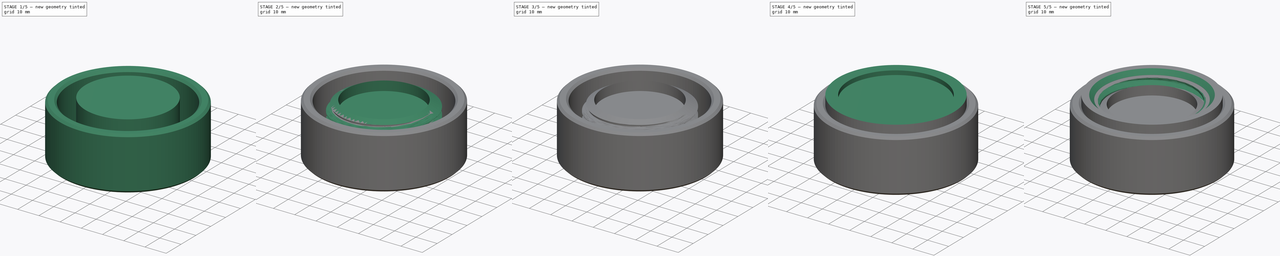
[diagram: build sequence overview — one tinted view per stage of 5, left to right]
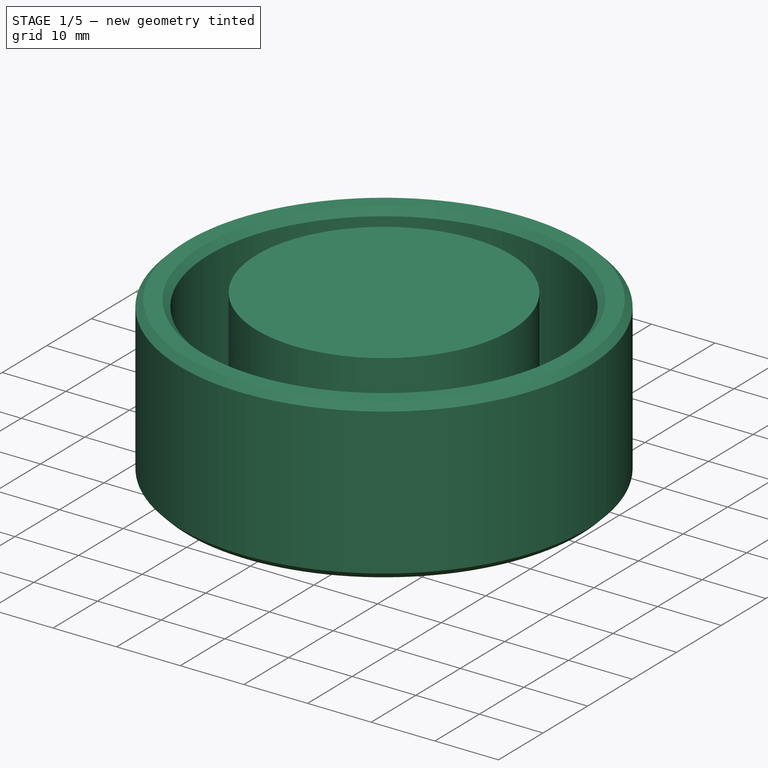
[diagram: stage 1 of 5 — iso view after this stage's code; geometry added in this stage tinted green]
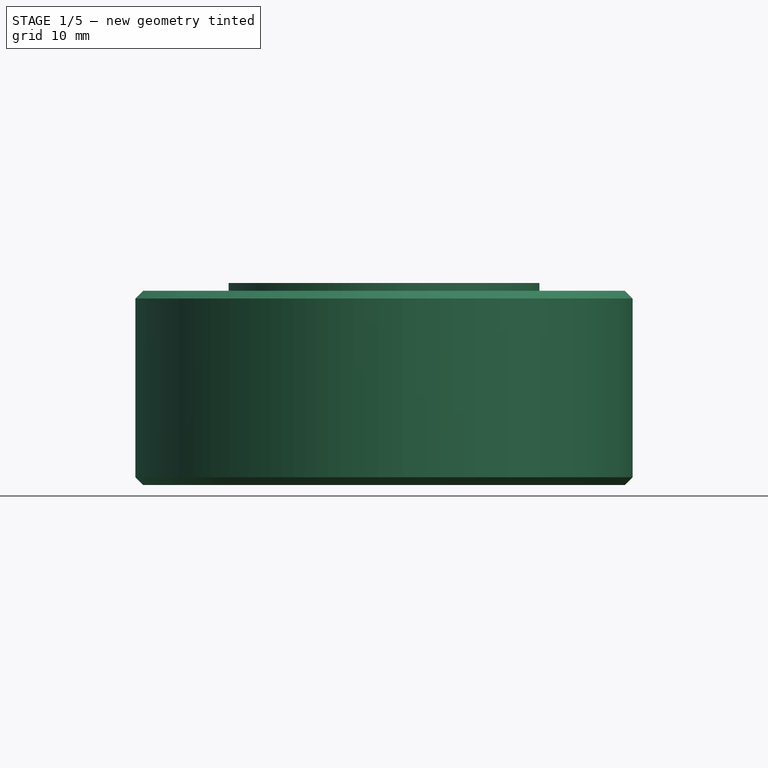
[diagram: stage 1 of 5 — front view after this stage's code; geometry added in this stage tinted green]
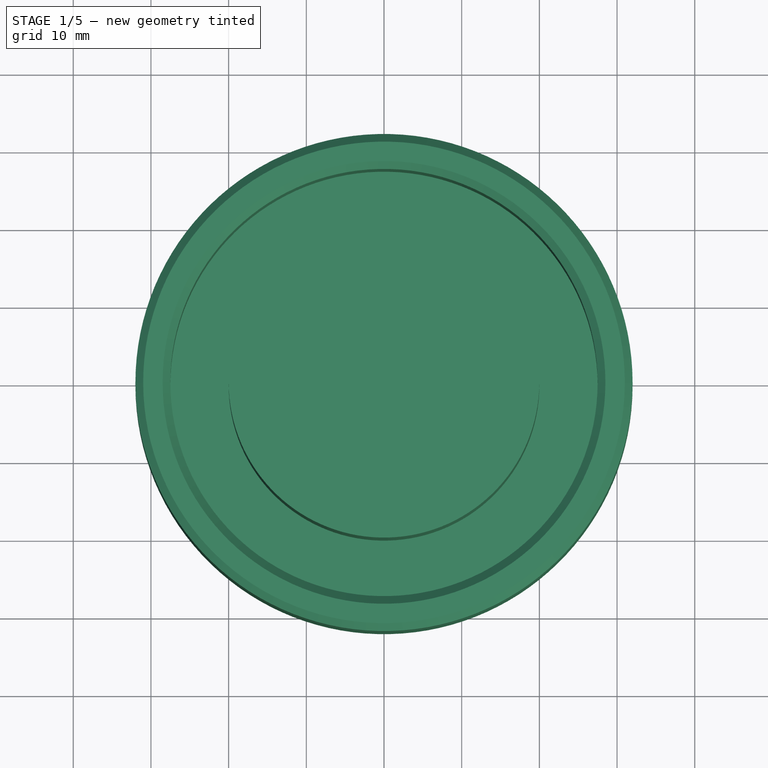
[diagram: stage 1 of 5 — top view after this stage's code; geometry added in this stage tinted green]
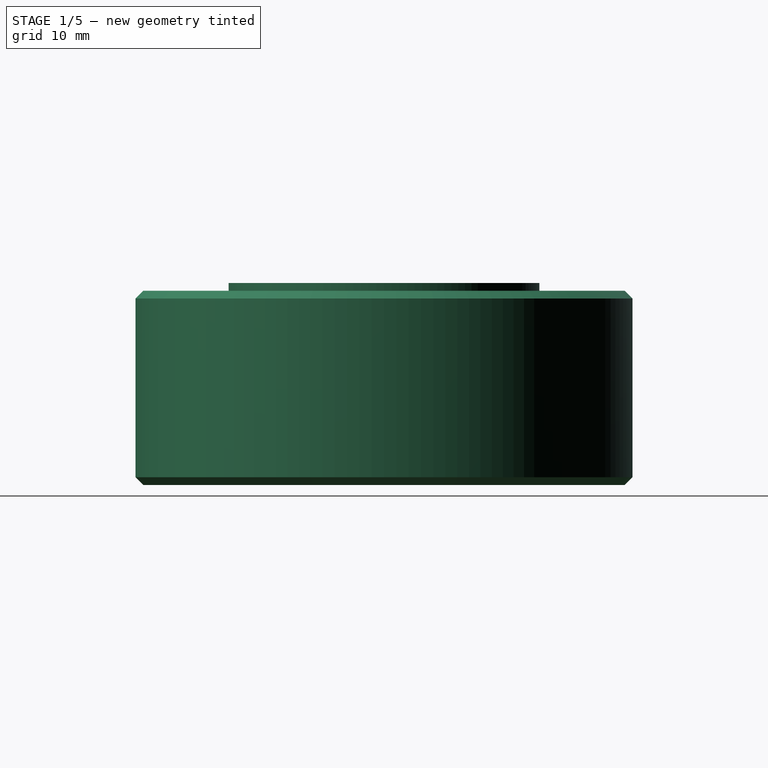
[diagram: stage 1 of 5 — right view after this stage's code; geometry added in this stage tinted green]
FCSTD DOCUMENT  (FreeCAD 1.1R20260325 (Git shallow))
Label: DrXAwesomeKnob
License: All rights reserved
LicenseURL: https://en.wikipedia.org/wiki/All_rights_reserved
objects: Sketcher::SketchObject×11, App::Point×8, PartDesign::Pad×6, PartDesign::Body×4, App::Part×4, PartDesign::Pocket×4, PartDesign::Chamfer×3, Part::Part2DObjectPython×2, Part::Helix×2, PartDesign::Fillet×2, PartDesign::SubtractivePipe×1, PartDesign::AdditivePipe×1, PartDesign::Groove×1
note: 84 computed .brp shape members not serialized (recipe doc carries the construction recipe); baked Part::Feature solids carry a one-line shape summary decoded from their .brp

FEATURE [PartDesign::Body] Body  label="XKnobTopBody"
  AllowCompound = true
  Group = -> [Sketch002,Pad001,Sketch003,Pocket,Sketch004,Pad002,Sketch005,Pocket001,VThreadProfile,Helix,SubtractivePipe,Chamfer,Fillet]
  Origin = -> Origin002
  Tip = -> Fillet
FEATURE [App::Part] Part  label="XKnobTopPart"
  Group = -> [Body]
  Origin = -> Origin
FEATURE [App::Point] Origin009  label="Origin011"
  Role = Origin
FEATURE [App::Point] Origin011  label="Origin014"
  Role = Origin
FEATURE [Sketcher::SketchObject] Sketch006
  ArcFitTolerance = 1e-06
  AttachmentSupport = -> [Origin010]
  ExternalTypes = [0]
  FullyConstrained = true
  MakeInternals = false
  MapMode = 5
  _ExternalGeoVersion = 1
  sketch-geometry (1):
    g0: Circle CenterX=0 CenterY=0 CenterZ=0 NormalX=0 NormalY=0 NormalZ=1 AngleXU=0 Radius=30
  constraints (2):
    c: Diameter(g0) = 60
    c: Coincident(g0,g-1)
FEATURE [PartDesign::Pad] Pad003  label="BottomPad"
  Direction = (0,0,1)
  Length = 3.5
  Length2 = 10
  Profile = -> Sketch006
  ReferenceAxis = -> Sketch006 [N_Axis]
  Refine = true
  SideType = 0
  Suppressed = false
  Type = 0
  Type2 = 0
FEATURE [Sketcher::SketchObject] Sketch007
  ArcFitTolerance = 1e-06
  AttachmentSupport = -> [Pad003]
  ExternalTypes = [0]
  FullyConstrained = true
  MakeInternals = false
  MapMode = 5
  Placement = pos=(0,0,3.5) rot=(0,0,1;0rad)
  _ExternalGeoVersion = 1
  sketch-geometry (1):
    g0: Circle CenterX=0 CenterY=0 CenterZ=0 NormalX=0 NormalY=0 NormalZ=1 AngleXU=0 Radius=20
  constraints (2):
    c: Diameter(g0) = 40
    c: Coincident(g0,g-1)
FEATURE [PartDesign::Pad] Pad004  label="InnerPad"
  BaseFeature = -> Pad003
  Direction = (0,0,1)
  Length = 22.5
  Length2 = 10
  Profile = -> Sketch007
  ReferenceAxis = -> Sketch007 [N_Axis]
  Refine = true
  SideType = 0
  Suppressed = false
  Type = 0
  Type2 = 0
FEATURE [PartDesign::Body] Body002  label="XKnobBottomBody"
  AllowCompound = true
  Group = -> [Sketch006,Pad003,Sketch007,Pad004,VThreadProfile001,Helix001,AdditivePipe,Sketch008,Groove,Sketch009,Pocket002,Sketch010,Pocket003,Chamfer001,Fillet001]
  Origin = -> Origin010
  Tip = -> Fillet001
FEATURE [App::Part] Part002  label="XKnobBottomPart"
  Group = -> [Body002]
  Origin = -> Origin008
FEATURE [App::Point] Origin013  label="Origin017"
  Role = Origin
FEATURE [App::Point] Origin015  label="Origin020"
  Role = Origin
FEATURE [Sketcher::SketchObject] Sketch011
  ArcFitTolerance = 1e-06
  AttachmentSupport = -> [Origin014]
  ExternalTypes = [0]
  FullyConstrained = true
  MakeInternals = false
  MapMode = 5
  _ExternalGeoVersion = 1
  sketch-geometry (2):
    g0: Circle CenterX=0 CenterY=0 CenterZ=0 NormalX=0 NormalY=0 NormalZ=1 AngleXU=0 Radius=27.5
    g1: Circle CenterX=0 CenterY=0 CenterZ=0 NormalX=0 NormalY=0 NormalZ=1 AngleXU=0 Radius=32
  constraints (4):
    c: Diameter(g0) = 55
    c: Coincident(g0,g-1)
    c: Diameter(g1) = 64
    c: Coincident(g1,g0)
FEATURE [PartDesign::Pad] Pad005
  Direction = (0,0,1)
  Length = 25
  Length2 = 10
  Profile = -> Sketch011
  ReferenceAxis = -> Sketch011 [N_Axis]
  Refine = true
  SideType = 0
  Suppressed = false
  Type = 0
  Type2 = 0
FEATURE [PartDesign::Chamfer] Chamfer002
  Angle = 45
  Base = -> Pad005 [Edge2,Edge3,Edge5,Edge6]
  BaseFeature = -> Pad005
  ChamferType = 0
  FlipDirection = false
  Refine = true
  Size = 1
  Size2 = 1
  SupportTransform = false
  Suppressed = false
  UseAllEdges = false
FEATURE [PartDesign::Body] Body003  label="XKnobEdgeBody"
  AllowCompound = true
  Group = -> [Sketch011,Pad005,Chamfer002]
  Origin = -> Origin014
  Tip = -> Chamfer002
FEATURE [App::Part] Part003  label="XKnobEdgePart"
  Group = -> [Body003]
  Origin = -> Origin012
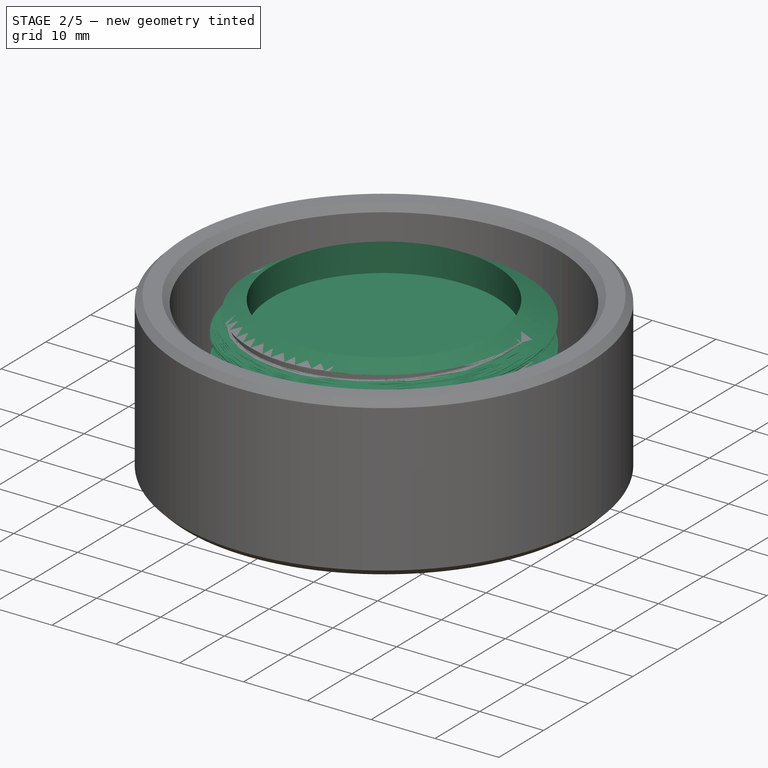
[diagram: stage 2 of 5 — iso view after this stage's code; geometry added in this stage tinted green]
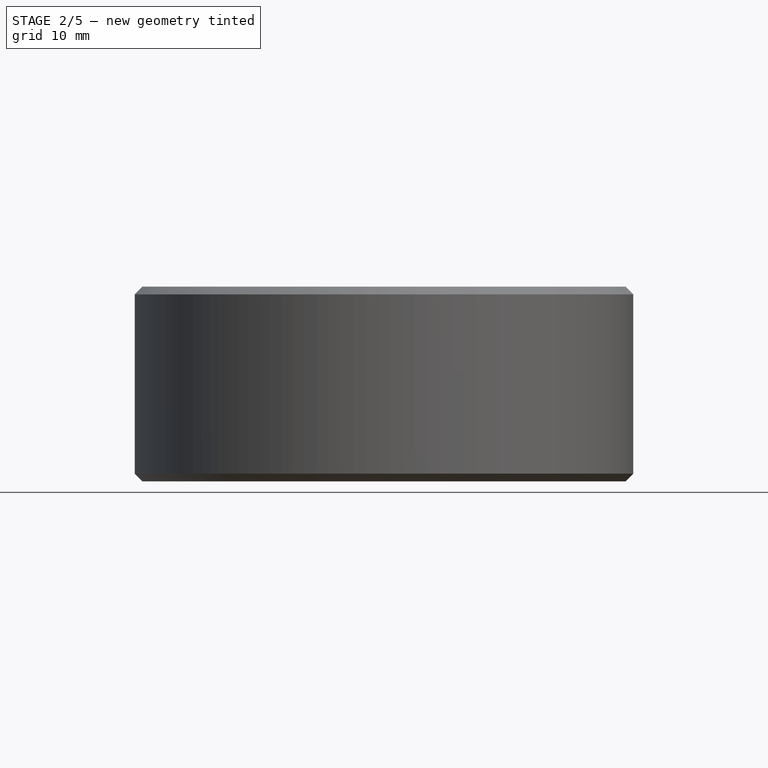
[diagram: stage 2 of 5 — front view after this stage's code; geometry added in this stage tinted green]
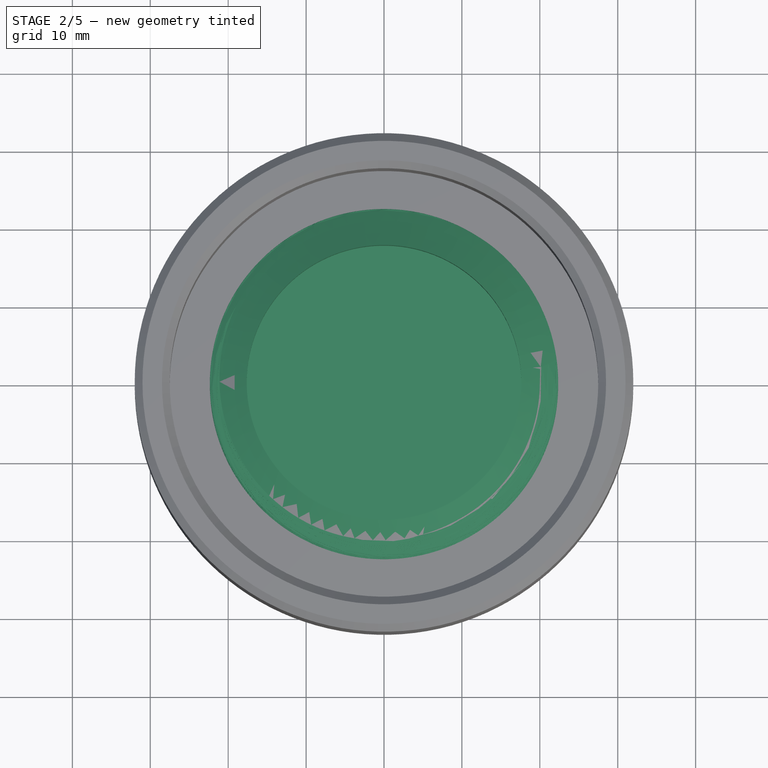
[diagram: stage 2 of 5 — top view after this stage's code; geometry added in this stage tinted green]
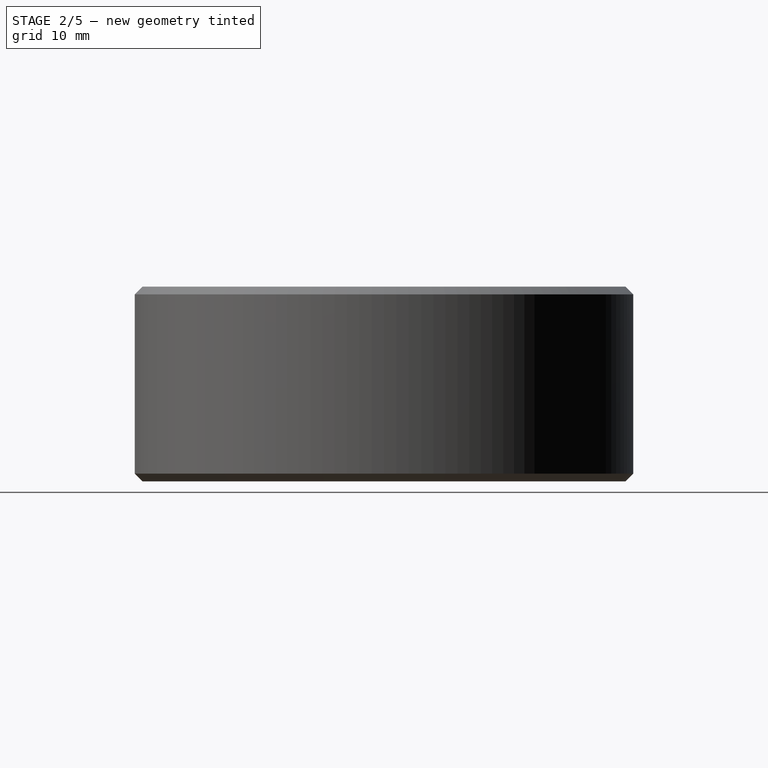
[diagram: stage 2 of 5 — right view after this stage's code; geometry added in this stage tinted green]
FEATURE [Part::Part2DObjectPython] VThreadProfile001  label="VThreadProfile003"  # Draft 2D object (typed FeaturePython)
  Area = 1398.74
  Closed = true
  Continuity = C2
  Deviation = 0.1
  Height = 26
  Helix = Helix001
  Instructions = Expand this with the ... button to view instructions | Sweep this object along a helix of the same pitch to produce your thread. | It is recommended to make the helix in the ThreadProfile workbench. | If there is an active Body the ThreadProfile object will be put into it.,If not it can be dragged and dropped into the body later. | If there is an active Body when the helix is made there will be made a ShapeBinder for it | For internal threads you will need to cut the Sweep object out of a cylinder, or if using Part Design sweep it as a Subtractive Pipe. | Always use Frenet mode | I have provided some presets, but it is possible there could be some errors.  Double check for mission critical applications. | Also, the tolerances might be different from what you wish to have.  I believe the internal minor diameters are all minimum and the external are all maximum.
  InternalOrExternal = 1
  MajorDiameter = 45
  MajorDiameterFinal = 44.7
  MakeFace = true
  MapMode = 11
  MinorDiameter = 40.6699
  MinorDiameterFinal = 40.3699
  Parameterization = 1
  Pitch = 4
  Points = (66) [(20.0824,1.93642,0),(19.7219,3.83902,0),(19.2051,5.69716,0),(18.5279,7.49725,0),(17.6925,9.22517,0),(16.7044,10.867,0),(15.5706,12.4092,0),+59 more]
  Presets = 0
  Quality = 11
  ThreadCount = 6.5
  Tolerance = -0.3
  Variants = 0
  Version = 1.98
  d_delta = 4.33013
  external2S_data = [-0.00461051,-0.00886426,-0.0128148,-0.0165028,-0.0199596,-0.0232105,-0.0262759,-0.0291725,-0.0319145,-0.0345137,-0.0369805,-0.0393235,-0.0415505,-0.0436681,-0.0456823,-0.0475981,-0.0494204,-0.0511532,-0.0528003,-0.0543649,-0.0558502,+698 more]
  external3S_data = [-0.00677828,-0.0128149,-0.0182584,-0.0232106,-0.0277444,-0.0319145,-0.0357632,-0.0393236,-0.0426227,-0.0456823,-0.0485208,-0.0511533,-0.0535928,-0.0558503,-0.0579353,-0.059856,-0.0616195,-0.0632319,-0.0646984,-0.0660239,-0.0672123,+698 more]
  external45_data = [-0.00137363,-0.00271738,-0.00403219,-0.00531893,-0.00657844,-0.00781148,-0.00901878,-0.010201,-0.0113589,-0.012493,-0.0136039,-0.0146921,-0.0157583,-0.0168028,-0.0178261,-0.0188288,-0.0198112,-0.0207738,-0.0217169,-0.0226409,-0.0235462,+698 more]
  external_data = [-0.00235387,-0.00461052,-0.00677828,-0.00886428,-0.0108747,-0.0128149,-0.0146895,-0.0165028,-0.0182584,-0.0199597,-0.0216095,-0.0232106,-0.0247653,-0.0262759,-0.0277444,-0.0291725,-0.0305621,-0.0319145,-0.0332313,-0.0345138,-0.0357632,+698 more]
  internal2S_data = [0,0,0,0,0,0,0,0,0,0,0,0,0,0,0,0,0,0,0,0,0,0,0,0,0,0,0,0,0,0,0,0,0,0,0,0,0,0,0,0,0,0,0,0,0,0,0,0,0,0,0,0,0,0,0,0,0,0,0,0,0,0,0,0,0,0,0,0,0,0,0,0,0,0,0,0,0,0,0,0,0,0,0,0,0,0,0,0,0,0,0.00481128,0.00962256,0.0144338,0.0192451,0.0240564,+624 more]
  internal3S_data = [0,0,0,0,0,0,0,0,0,0,0,0,0,0,0,0,0,0,0,0,0,0,0,0,0,0,0,0,0,0,0,0,0,0,0,0,0,0,0,0,0,0,0,0,0,0,0,0,0,0,0,0,0,0,0,0,0,0,0,0,0.00721688,0.0144338,0.0216506,0.0288675,0.0360844,0.0433013,0.0505181,0.057735,0.0649519,0.0721688,0.0793857,0.0866025,+647 more]
  internal45_data = [0,0,0,0,0,0,0,0,0,0,0,0,0,0,0,0,0,0,0,0,0,0,0,0,0,0,0,0,0,0,0,0,0,0,0,0,0,0,0,0,0,0,0,0,0,0,0,0,0,0,0,0,0,0,0,0,0,0,0,0,0,0,0,0,0,0,0,0,0,0,0,0,0,0,0,0,0,0,0,0,0,0,0,0,0,0,0,0,0,0,0,0,0,0,0,0,0,0,0,0,0,0,0,0,0,0,0,0,0,0,0,0,0,0,0,0,0,0,0,0,+599 more]
  internal_data = [0,0,0,0,0,0,0,0,0,0,0,0,0,0,0,0,0,0,0,0,0,0,0,0,0,0,0,0,0,0,0,0,0,0,0,0,0,0,0,0,0,0,0,0,0,0,0,0,0,0,0,0,0,0,0,0,0,0,0,0,0,0,0,0,0,0,0,0,0,0,0,0,0,0,0,0,0,0,0,0,0,0,0,0,0,0,0,0,0,0,0,0,0,0,0,0,0,0,0,0,0,0,0,0,0,0,0,0,0,0,0,0,0,0,0,0,0,0,0,0,+599 more]
  preset_names = <blob: 7414 chars omitted>
  presets_data = [0,0,0,2.20878,24.1173,24.6888,0.35,1.17049,1.22111,0.4,1.50914,1.56699,0.45,1.94778,2.01286,0.5,2.38642,2.45873,0.6,2.76371,2.85048,0.7,3.14099,3.24223,0.8,4.01827,4.13397,1,4.77284,4.91747,1.25,6.46605,6.64684,1,6.77284,6.91747,1.5,+1277 more]
FEATURE [Part::Helix] Helix001
  Angle = 0
  AttacherType = Attacher::AttachEngine3D
  Height = 26
  Length = 48.4145
  LocalCoord = 0
  MapMode = 11
  Pitch = 4
  Radius = 1
  SegmentLength = 1
  Style = 0
  expr: AttachmentOffset = VThreadProfile001.AttachmentOffset
  expr: AttachmentSupport = VThreadProfile001.AttachmentSupport
  expr: Height = VThreadProfile001.ThreadCount * VThreadProfile001.Pitch
  expr: MapMode = VThreadProfile001.MapMode
  expr: MapPathParameter = VThreadProfile001.MapPathParameter
  expr: MapReversed = VThreadProfile001.MapReversed
  expr: Pitch = VThreadProfile001.Pitch
  expr: SegmentLength = 1
FEATURE [PartDesign::AdditivePipe] AdditivePipe  label="Threads"
  AuxiliaryCurvilinear = true
  AuxiliarySpineTangent = false
  BaseFeature = -> Pad004
  Binormal = (0,0,0)
  Mode = 2
  Profile = -> VThreadProfile001
  Refine = true
  Spine = -> Helix001
  SpineTangent = false
  Suppressed = false
  Transformation = 0
  Transition = 0
FEATURE [Sketcher::SketchObject] Sketch008
  ArcFitTolerance = 1e-06
  AttachmentSupport = -> [Origin010]
  ExternalTypes = [0]
  FullyConstrained = true
  MakeInternals = false
  MapMode = 5
  Placement = pos=(0,0,0) rot=(1,0,0;1.5708rad)
  _ExternalGeoVersion = 1
  sketch-geometry (4):
    g0: LineSegment StartX=23.35 StartY=21.21 StartZ=0 EndX=13.92 EndY=26.56 EndZ=0
    g1: LineSegment StartX=13.92 StartY=26.56 StartZ=0 EndX=24.64 EndY=26.56 EndZ=0
    g2: LineSegment StartX=24.64 StartY=26.56 StartZ=0 EndX=24.64 EndY=21.21 EndZ=0
    g3: LineSegment StartX=24.64 StartY=21.21 StartZ=0 EndX=23.35 EndY=21.21 EndZ=0
  constraints (12):
    c: Coincident(g0,g1)
    c: Horizontal(g1)
    c: Coincident(g1,g2)
    c: Vertical(g2)
    c: Coincident(g2,g3)
    c: Coincident(g3,g0)
    c: Horizontal(g3)
    c: DistanceX(g1,g1) = 10.72
    c: DistanceX(g3,g3) = 1.29
    c: DistanceY(g2,g2) = 5.35
    c: DistanceY(g-1,g0) = 26.56
    c: DistanceX(g-1,g0) = 23.35
FEATURE [PartDesign::Groove] Groove
  Angle = 360
  Angle2 = 0
  Axis = (0,2e-16,1)
  Base = (0,0,0)
  BaseFeature = -> AdditivePipe
  Profile = -> Sketch008
  ReferenceAxis = -> Sketch008 [V_Axis]
  Refine = true
  Suppressed = false
  Type = 0
FEATURE [Sketcher::SketchObject] Sketch009
  ArcFitTolerance = 1e-06
  AttachmentSupport = -> [Groove]
  ExternalTypes = [0]
  FullyConstrained = true
  MakeInternals = false
  MapMode = 5
  Placement = pos=(-2.10082e-09,-5.814e-09,26) rot=(0,0,1;0rad)
  _ExternalGeoVersion = 1
  sketch-geometry (1):
    g0: Circle CenterX=0 CenterY=0 CenterZ=0 NormalX=0 NormalY=0 NormalZ=1 AngleXU=0 Radius=17.625
  constraints (2):
    c: Diameter(g0) = 35.25
    c: Coincident(g0,g-1)
FEATURE [PartDesign::Pocket] Pocket002  label="MetalNutPocket"
  BaseFeature = -> Groove
  Direction = (8.08009e-11,2.23615e-10,-1)
  Length = 6
  Length2 = 5
  Profile = -> Sketch009
  ReferenceAxis = -> Sketch009 [N_Axis]
  Refine = true
  SideType = 0
  Suppressed = false
  Type = 0
  Type2 = 0
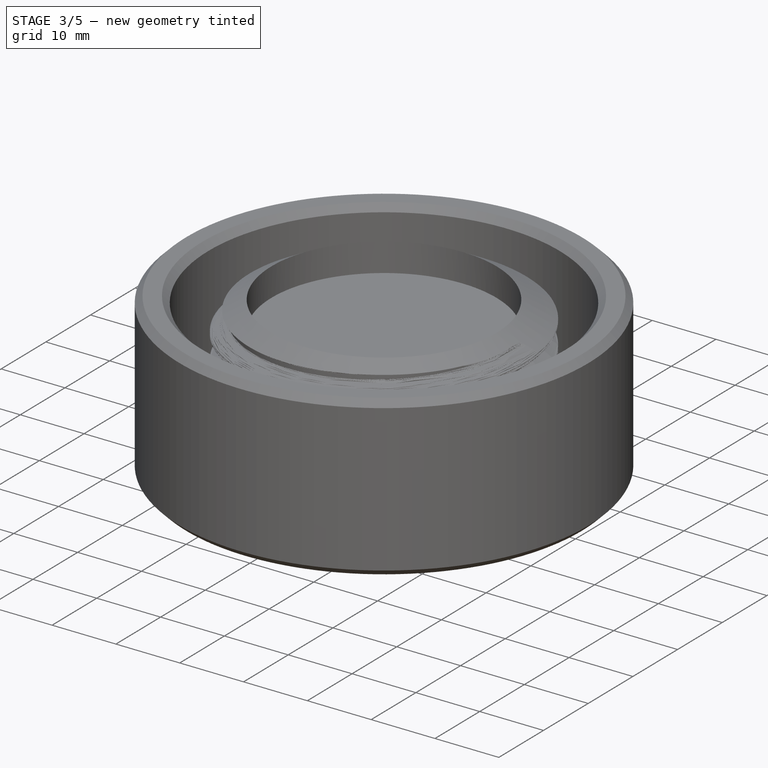
[diagram: stage 3 of 5 — iso view after this stage's code; geometry added in this stage tinted green]
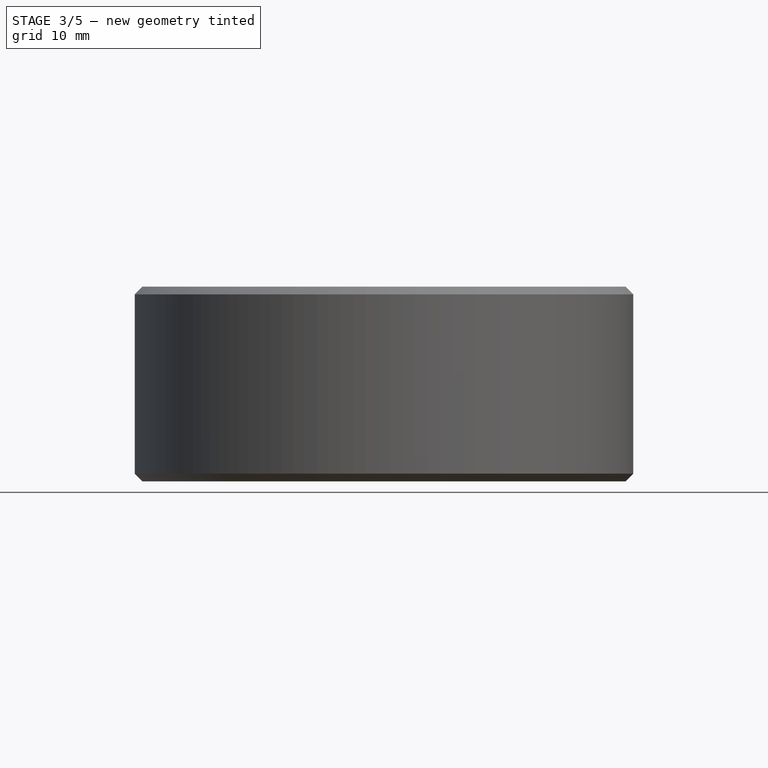
[diagram: stage 3 of 5 — front view after this stage's code; geometry added in this stage tinted green]
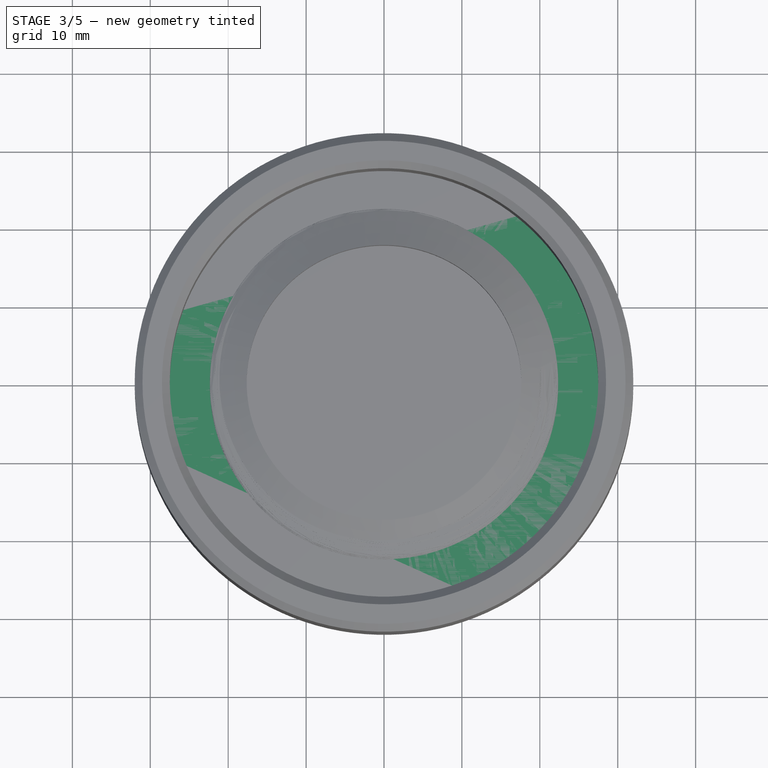
[diagram: stage 3 of 5 — top view after this stage's code; geometry added in this stage tinted green]
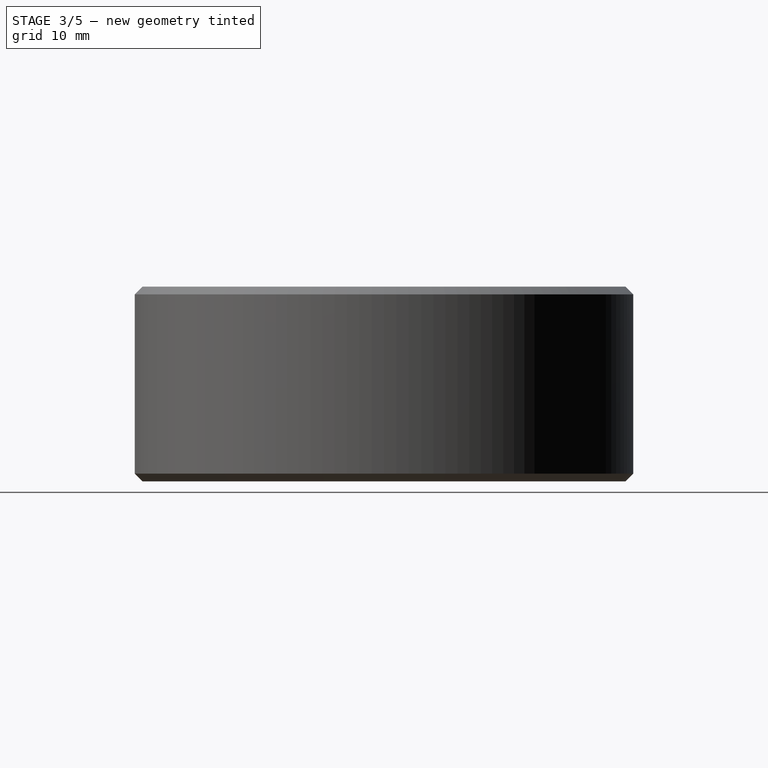
[diagram: stage 3 of 5 — right view after this stage's code; geometry added in this stage tinted green]
FEATURE [PartDesign::Body] Body001  label="XInsertBody"
  AllowCompound = true
  Group = -> [Sketch,Pad]
  Origin = -> Origin006
  Tip = -> Pad
FEATURE [App::Part] Part001  label="XInsertPart"
  Group = -> [Body001]
  Origin = -> Origin004
FEATURE [Sketcher::SketchObject] Sketch002
  ArcFitTolerance = 1e-06
  AttachmentSupport = -> [Origin002]
  ExternalTypes = [0]
  FullyConstrained = true
  MakeInternals = false
  MapMode = 5
  _ExternalGeoVersion = 1
  sketch-geometry (1):
    g0: Circle CenterX=0 CenterY=0 CenterZ=0 NormalX=0 NormalY=0 NormalZ=1 AngleXU=0 Radius=30
  constraints (2):
    c: Diameter(g0) = 60
    c: Coincident(g0,g-1)
FEATURE [PartDesign::Pad] Pad001  label="TopPad"
  Direction = (0,0,1)
  Length = 3.5
  Length2 = 10
  Profile = -> Sketch002
  ReferenceAxis = -> Sketch002 [N_Axis]
  Refine = true
  SideType = 0
  Suppressed = false
  Type = 0
  Type2 = 0
FEATURE [Sketcher::SketchObject] Sketch010
  ArcFitTolerance = 1e-06
  AttachmentSupport = -> [Pocket002]
  ExternalTypes = [0]
  FullyConstrained = true
  MakeInternals = false
  MapMode = 5
  Placement = pos=(0,0,0) rot=(1,0,0;3.14159rad)
  _ExternalGeoVersion = 1
  sketch-geometry (1):
    g0: Circle CenterX=0 CenterY=0 CenterZ=0 NormalX=0 NormalY=0 NormalZ=1 AngleXU=0 Radius=3
  constraints (2):
    c: Diameter(g0) = 6
    c: Coincident(g0,g-1)
FEATURE [PartDesign::Pocket] Pocket003  label="ShaftPocket"
  BaseFeature = -> Pocket002
  Direction = (0,0,1)
  Length = 12.75
  Length2 = 5
  Profile = -> Sketch010
  ReferenceAxis = -> Sketch010 [N_Axis]
  Refine = true
  SideType = 0
  Suppressed = false
  Type = 0
  Type2 = 0
FEATURE [PartDesign::Chamfer] Chamfer001  label="ShaftPocketChamfer"
  Angle = 45
  Base = -> Pocket003 [Edge47]
  BaseFeature = -> Pocket003
  ChamferType = 0
  FlipDirection = false
  Refine = true
  Size = 1
  Size2 = 1
  SupportTransform = false
  Suppressed = false
  UseAllEdges = false
FEATURE [PartDesign::Fillet] Fillet001  label="BottomEdgeFillet"
  Base = -> Chamfer001 [Edge2]
  BaseFeature = -> Chamfer001
  Radius = 2
  Refine = true
  SupportTransform = false
  Suppressed = false
  UseAllEdges = false
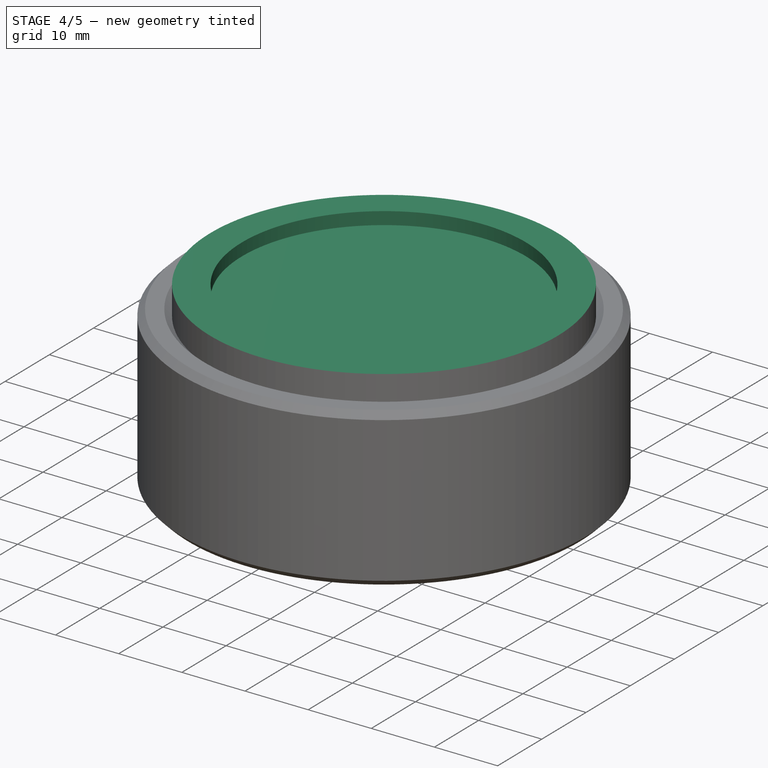
[diagram: stage 4 of 5 — iso view after this stage's code; geometry added in this stage tinted green]
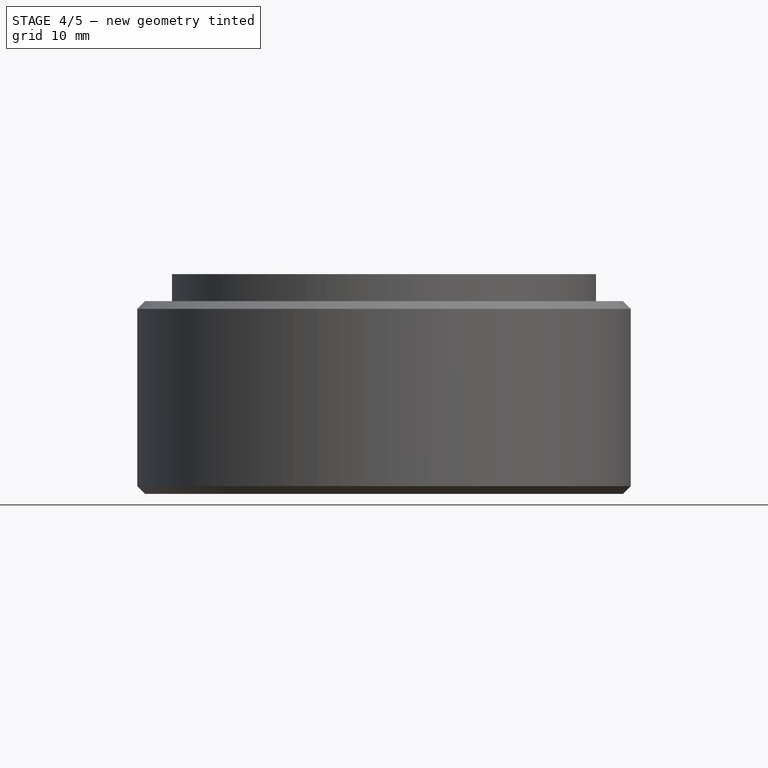
[diagram: stage 4 of 5 — front view after this stage's code; geometry added in this stage tinted green]
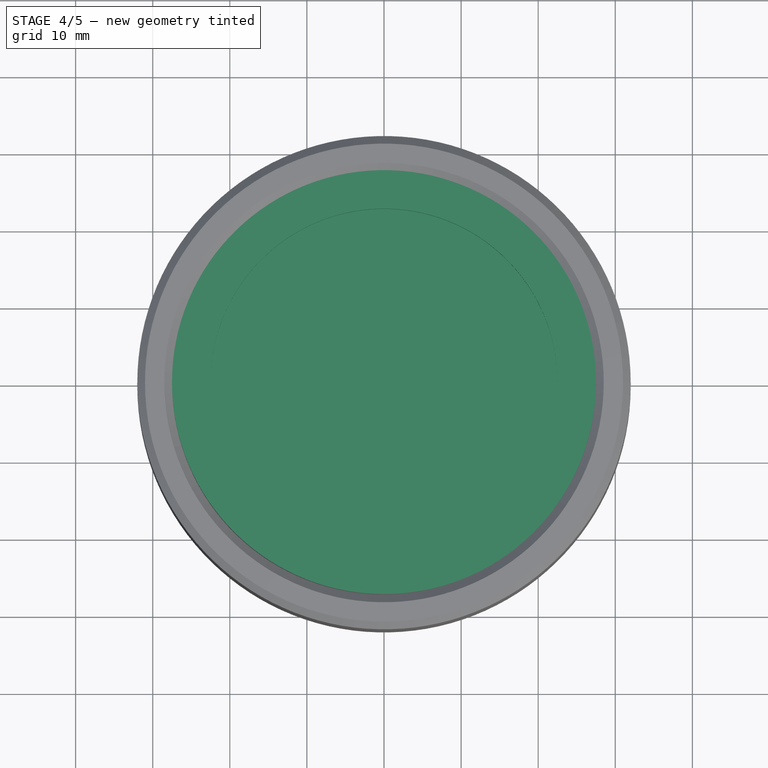
[diagram: stage 4 of 5 — top view after this stage's code; geometry added in this stage tinted green]
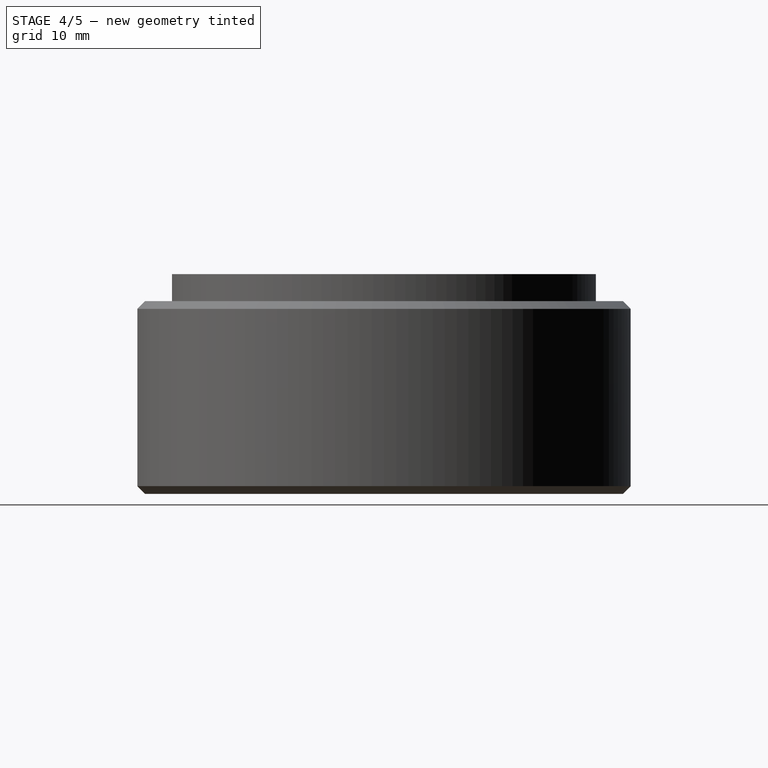
[diagram: stage 4 of 5 — right view after this stage's code; geometry added in this stage tinted green]
FEATURE [Sketcher::SketchObject] Sketch003
  ArcFitTolerance = 1e-06
  AttachmentSupport = -> [Origin006]
  ExternalTypes = [0]
  FullyConstrained = true
  MakeInternals = false
  MapMode = 5
  _ExternalGeoVersion = 1
  sketch-geometry (37):
    g0: LineSegment StartX=-2.5 StartY=19.8431 StartZ=0 EndX=-2.5 EndY=2.5 EndZ=0
    g1: LineSegment StartX=2.5 StartY=-19.84 StartZ=0 EndX=2.5 EndY=-2.5 EndZ=0
    g2: LineSegment StartX=-19.84 StartY=-2.5 StartZ=0 EndX=-2.5 EndY=-2.5 EndZ=0
    g3: LineSegment StartX=19.84 StartY=2.5 StartZ=0 EndX=2.5 EndY=2.5 EndZ=0
    g4: LineSegment StartX=-2.5 StartY=-2.5 StartZ=0 EndX=-2.5 EndY=-19.84 EndZ=0
    g5: LineSegment StartX=2.5 StartY=2.5 StartZ=0 EndX=2.5 EndY=19.84 EndZ=0
    g6: LineSegment StartX=-2.5 StartY=2.5 StartZ=0 EndX=-19.8431 EndY=2.5 EndZ=0
    g7: LineSegment StartX=2.5 StartY=-2.5 StartZ=0 EndX=19.84 EndY=-2.5 EndZ=0
    g8: LineSegment StartX=-0.88 StartY=10 StartZ=0 EndX=-0.88 EndY=1.38 EndZ=0
    g9: LineSegment StartX=0.88 StartY=-10 StartZ=0 EndX=0.88 EndY=-1.38 EndZ=0
    g10: LineSegment StartX=-10 StartY=-0.87 StartZ=0 EndX=-1.37 EndY=-0.87 EndZ=0
    g11: LineSegment StartX=10 StartY=0.87 StartZ=0 EndX=1.37 EndY=0.87 EndZ=0
    g12: LineSegment StartX=-0.87 StartY=-1.37 StartZ=0 EndX=-0.87 EndY=-10 EndZ=0
    g13: LineSegment StartX=-1.38 StartY=0.88 StartZ=0 EndX=-10 EndY=0.88 EndZ=0
    g14: LineSegment StartX=0.87 StartY=1.37 StartZ=0 EndX=0.87 EndY=10 EndZ=0
    g15: LineSegment StartX=1.38 StartY=-0.88 StartZ=0 EndX=10 EndY=-0.88 EndZ=0
    g16: LineSegment StartX=0.87 StartY=1.37 StartZ=0 EndX=-4e-16 EndY=0.5 EndZ=0
    g17: LineSegment StartX=-0.87 StartY=-1.37 StartZ=0 EndX=4e-16 EndY=-0.5 EndZ=0
    g18: LineSegment StartX=1.38 StartY=-0.88 StartZ=0 EndX=0.5 EndY=-2e-16 EndZ=0
    g19: LineSegment StartX=-1.38 StartY=0.88 StartZ=0 EndX=-0.5 EndY=3e-16 EndZ=0
    g20: LineSegment StartX=-4e-16 StartY=0.5 StartZ=0 EndX=-0.88 EndY=1.38 EndZ=0
    g21: LineSegment StartX=-0.5 StartY=3e-16 StartZ=0 EndX=-1.37 EndY=-0.87 EndZ=0
    g22: LineSegment StartX=4e-16 StartY=-0.5 StartZ=0 EndX=0.88 EndY=-1.38 EndZ=0
    g23: LineSegment StartX=0.5 StartY=-2e-16 StartZ=0 EndX=1.37 EndY=0.87 EndZ=0
    g24: LineSegment StartX=-10 StartY=0.88 StartZ=0 EndX=-13 EndY=0 EndZ=0
    g25: LineSegment StartX=-13 StartY=0 StartZ=0 EndX=-10 EndY=-0.87 EndZ=0
    g26: LineSegment StartX=-0.88 StartY=10 StartZ=0 EndX=1e-16 EndY=13 EndZ=0
    g27: LineSegment StartX=1e-16 StartY=13 StartZ=0 EndX=0.87 EndY=10 EndZ=0
    g28: LineSegment StartX=10 StartY=0.87 StartZ=0 EndX=13 EndY=1e-16 EndZ=0
    g29: LineSegment StartX=10 StartY=-0.88 StartZ=0 EndX=13 EndY=1e-16 EndZ=0
    g30: LineSegment StartX=-0.87 StartY=-10 StartZ=0 EndX=-1e-16 EndY=-13 EndZ=0
    g31: LineSegment StartX=-1e-16 StartY=-13 StartZ=0 EndX=0.88 EndY=-10 EndZ=0
    g32: ArcOfCircle CenterX=0 CenterY=0 CenterZ=0 NormalX=0 NormalY=0 NormalZ=1 AngleXU=0 Radius=20 StartAngle=1.69612 EndAngle=3.01626
    g33: Circle CenterX=0 CenterY=0 CenterZ=0 NormalX=0 NormalY=0 NormalZ=1 AngleXU=0 Radius=21.5
    g34: ArcOfCircle CenterX=0 CenterY=0 CenterZ=0 NormalX=0 NormalY=0 NormalZ=1 AngleXU=0 Radius=19.9969 StartAngle=0.125347 EndAngle=1.44545
    g35: ArcOfCircle CenterX=0 CenterY=0 CenterZ=0 NormalX=0 NormalY=0 NormalZ=1 AngleXU=0 Radius=19.9969 StartAngle=4.83774 EndAngle=6.15784
    g36: ArcOfCircle CenterX=0 CenterY=0 CenterZ=0 NormalX=0 NormalY=0 NormalZ=1 AngleXU=0 Radius=19.9969 StartAngle=3.26694 EndAngle=4.58704
  constraints (108):
    c: Coincident(g0,g6)
    c: Coincident(g5,g3)
    c: Coincident(g4,g2)
    c: Coincident(g1,g7)
    c: DistanceX(g0,g-1) = 2.5
    c: DistanceX(g-1,g1) = 2.5
    c: DistanceY(g1,g-1) = 2.5
    c: Distance(g8,g14) = 1.75
    c: Distance(g12,g8) = 20
    c: Symmetric(g14,g12,g-1)
    c: Distance(g13,g11) = 20
    c: Distance(g10,g13) = 1.75
    c: Symmetric(g11,g10,g-1)
    c: Horizontal(g13)
    c: Coincident(g19,g13)
    c: Vertical(g8)
    c: Coincident(g20,g8)
    c: Vertical(g9)
    c: Coincident(g22,g9)
    c: Horizontal(g15)
    c: Coincident(g18,g15)
    c: Vertical(g12)
    c: Coincident(g17,g12)
    c: Horizontal(g10)
    c: Coincident(g21,g10)
    c: Vertical(g14)
    c: Coincident(g16,g14)
    c: Horizontal(g11)
    c: Coincident(g23,g11)
    c: Coincident(g20,g16)
    c: Coincident(g21,g19)
    c: Coincident(g18,g23)
    c: Coincident(g22,g17)
    c: DistanceX(g19,g-1) = 0.5
    c: DistanceX(g-1,g18) = 0.5
    c: DistanceY(g-1,g16) = 0.5
    c: DistanceY(g17,g-1) = 0.5
    c: DistanceY(g12,g-1) = 1.37
    c: DistanceY(g9,g-1) = 1.38
    c: DistanceY(g-1,g8) = 1.38
    c: DistanceY(g-1,g14) = 1.37
    c: DistanceX(g10,g-1) = 1.37
    c: DistanceX(g-1,g15) = 1.38
    c: DistanceX(g-1,g11) = 1.37
    c: DistanceX(g13,g-1) = 1.38
    c: DistanceX(g8,g-1) = 0.88
    c: DistanceX(g-1,g9) = 0.88
    c: DistanceY(g10,g-1) = 0.87
    c: DistanceY(g15,g-1) = 0.88
    c: DistanceX(g16,g17) = 0
    c: DistanceX(g17,g-1) = 0
    c: DistanceY(g18,g19) = 0
    c: DistanceY(g19,g-1) = 0
    c: Coincident(g24,g13)
    c: PointOnObject(g24,g-1)
    c: Coincident(g25,g24)
    c: Coincident(g25,g10)
    c: DistanceX(g24,g10) = 3
    c: Coincident(g26,g8)
    c: PointOnObject(g26,g-2)
    c: Coincident(g27,g26)
    c: Coincident(g27,g14)
    c: DistanceY(g8,g26) = 3
    c: Coincident(g28,g11)
    c: PointOnObject(g28,g-1)
    c: Coincident(g29,g15)
    c: Coincident(g29,g28)
    c: DistanceX(g15,g28) = 3
    c: Coincident(g30,g12)
    c: PointOnObject(g30,g-2)
    c: Coincident(g31,g30)
    c: Coincident(g31,g9)
    c: DistanceY(g30,g9) = 3
    c: DistanceY(g8,g14) = 0
    c: DistanceY(g12,g9) = 0
    c: DistanceX(g15,g11) = 0
    c: DistanceX(g13,g10) = 0
    c: Coincident(g32,g-1)
    c: Diameter(g33) = 43
    c: Coincident(g33,g32)
    c: Vertical(g0)
    c: Vertical(g5)
    c: Coincident(g0,g32)
    c: Coincident(g5,g34)
    c: Horizontal(g3)
    c: Horizontal(g7)
    c: Coincident(g3,g34)
    c: Coincident(g7,g35)
    c: Coincident(g32,g34)
    c: Vertical(g1)
    c: Vertical(g4)
    c: Coincident(g1,g35)
    c: Coincident(g4,g36)
    c: Coincident(g32,g35)
    c: Horizontal(g2)
    c: Horizontal(g6)
    c: Diameter(g32) = 40
    c: Coincident(g2,g36)
    c: Coincident(g6,g32)
    c: Coincident(g32,g36)
    c: DistanceY(g2,g6) = 5
    c: DistanceY(g32,g6) = 2.5
    c: DistanceY(g7,g3) = 5
    c: DistanceX(g0,g5) = 5
    c: DistanceX(g4,g1) = 5
    c: DistanceX(g2,g2) = 17.34
    c: DistanceX(g7,g7) = 17.34
    c: DistanceX(g3,g3) = 17.34
FEATURE [PartDesign::Pocket] Pocket  label="InsertPocket"
  BaseFeature = -> Pad001
  Direction = (0,0,-1)
  Length = 1
  Length2 = 5
  Profile = -> Sketch003
  ReferenceAxis = -> Sketch003 [N_Axis]
  Refine = true
  Reversed = true
  SideType = 0
  Suppressed = false
  Type = 0
  Type2 = 0
FEATURE [Sketcher::SketchObject] Sketch004
  ArcFitTolerance = 1e-06
  AttachmentSupport = -> [Pocket]
  ExternalTypes = [0]
  FullyConstrained = true
  MakeInternals = false
  MapMode = 5
  Placement = pos=(0,0,3.5) rot=(0,0,1;0rad)
  _ExternalGeoVersion = 1
  sketch-geometry (1):
    g0: Circle CenterX=0 CenterY=0 CenterZ=0 NormalX=0 NormalY=0 NormalZ=1 AngleXU=0 Radius=27.5
  constraints (2):
    c: Diameter(g0) = 55
    c: Coincident(g0,g-1)
FEATURE [PartDesign::Pad] Pad002  label="NutPad"
  BaseFeature = -> Pocket
  Direction = (0,0,1)
  Length = 25
  Length2 = 10
  Profile = -> Sketch004
  ReferenceAxis = -> Sketch004 [N_Axis]
  Refine = true
  SideType = 0
  Suppressed = false
  Type = 0
  Type2 = 0
FEATURE [Sketcher::SketchObject] Sketch005
  ArcFitTolerance = 1e-06
  AttachmentSupport = -> [Pad002]
  ExternalTypes = [0]
  FullyConstrained = true
  MakeInternals = false
  MapMode = 5
  Placement = pos=(0,0,28.5) rot=(0,0,1;0rad)
  _ExternalGeoVersion = 1
  sketch-geometry (1):
    g0: Circle CenterX=0 CenterY=0 CenterZ=0 NormalX=0 NormalY=0 NormalZ=1 AngleXU=0 Radius=22.5
  constraints (2):
    c: Diameter(g0) = 45
    c: Coincident(g0,g-1)
FEATURE [PartDesign::Pocket] Pocket001  label="NutPocket"
  BaseFeature = -> Pad002
  Direction = (0,0,-1)
  Length = 2
  Length2 = 5
  Profile = -> Sketch005
  ReferenceAxis = -> Sketch005 [N_Axis]
  Refine = true
  SideType = 0
  Suppressed = false
  Type = 0
  Type2 = 0
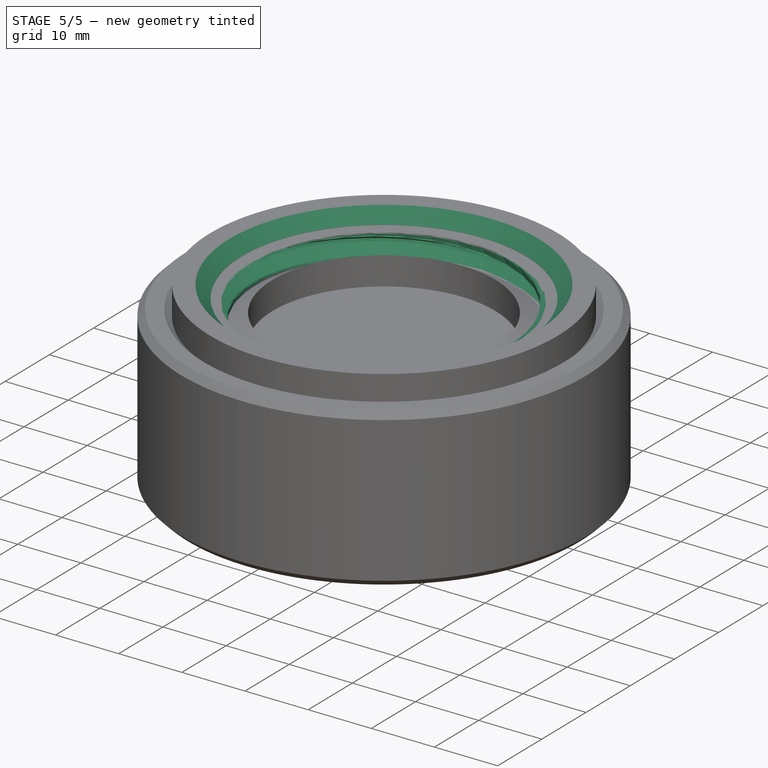
[diagram: stage 5 of 5 — iso view after this stage's code; geometry added in this stage tinted green]
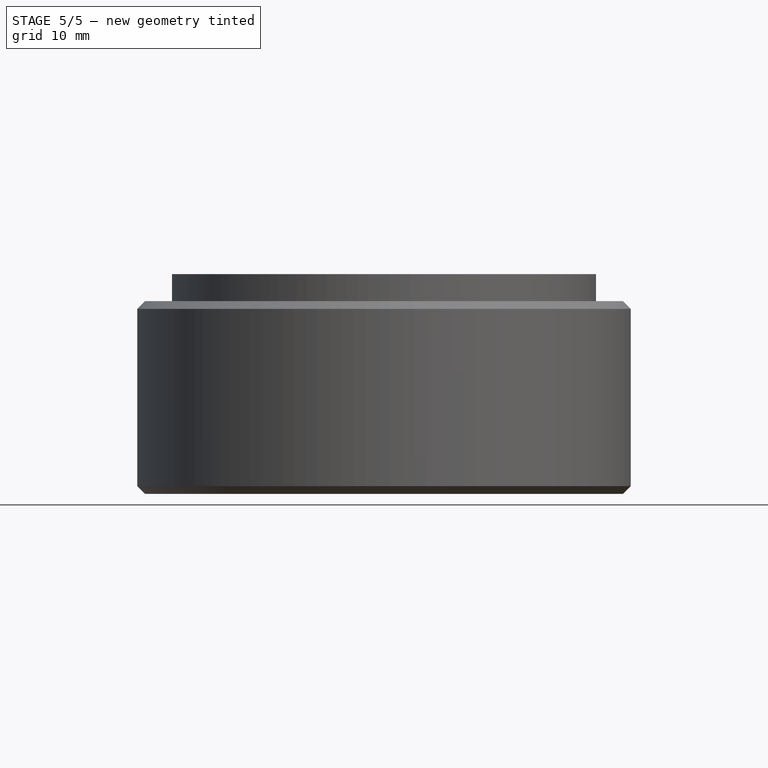
[diagram: stage 5 of 5 — front view after this stage's code; geometry added in this stage tinted green]
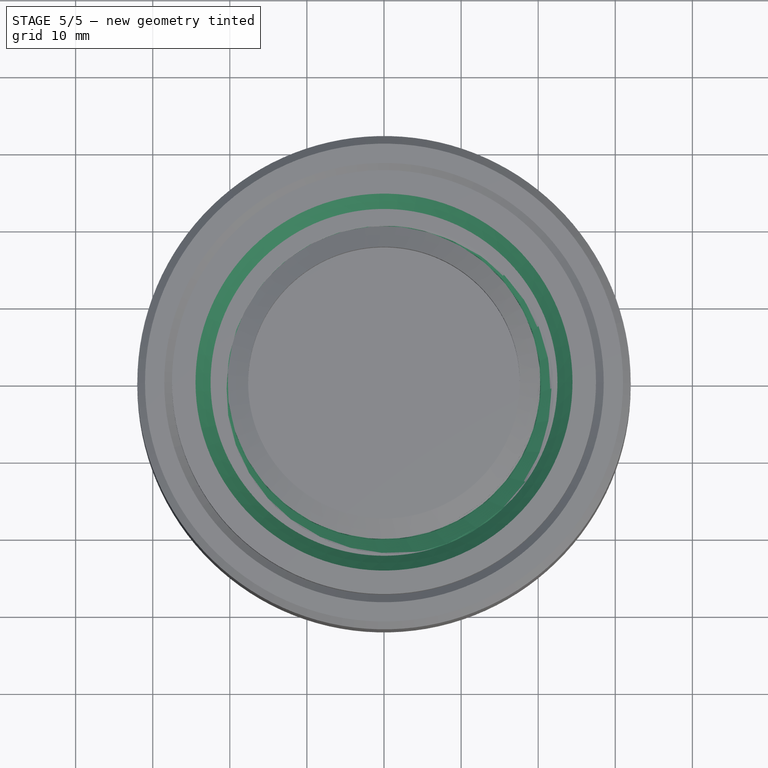
[diagram: stage 5 of 5 — top view after this stage's code; geometry added in this stage tinted green]
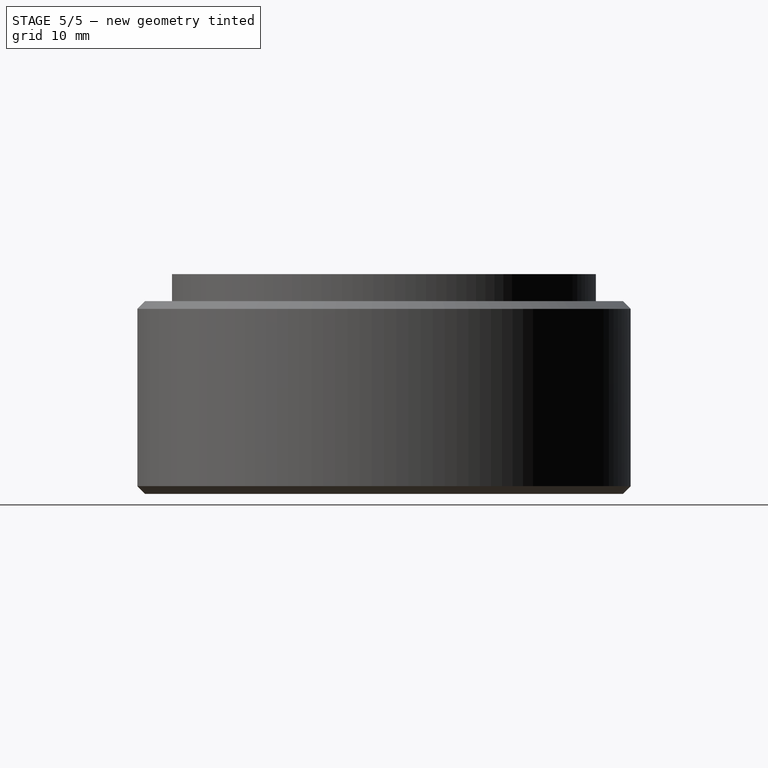
[diagram: stage 5 of 5 — right view after this stage's code; geometry added in this stage tinted green]
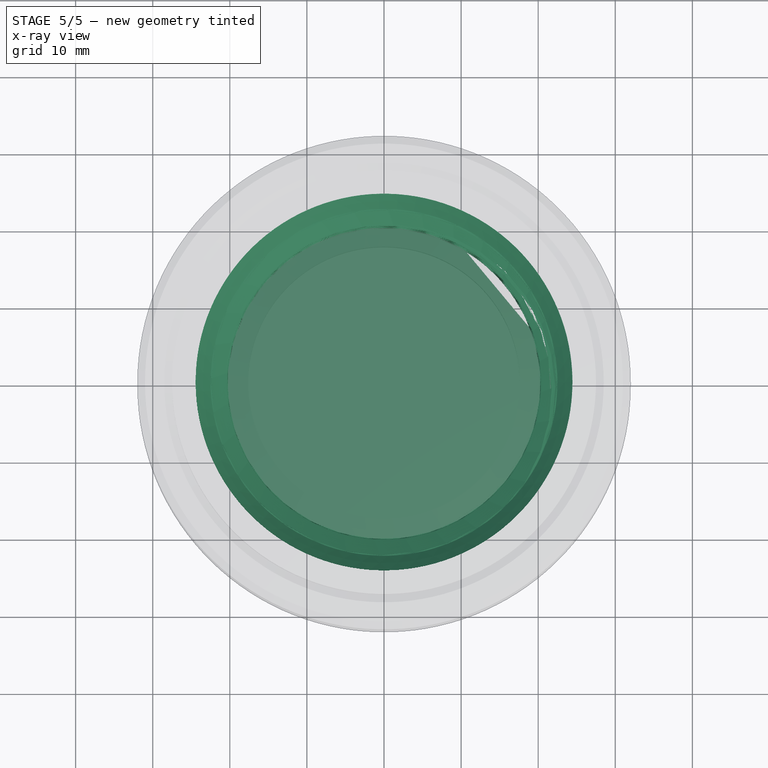
[diagram: stage 5 of 5 — x-ray composite at the top view; earlier geometry ghosted, this stage's added geometry solid]
FEATURE [App::Point] Origin001
  Role = Origin
FEATURE [App::Point] Origin003
  Role = Origin
FEATURE [App::Point] Origin005  label="Origin006"
  Role = Origin
FEATURE [App::Point] Origin007  label="Origin009"
  Role = Origin
FEATURE [Sketcher::SketchObject] Sketch
  ArcFitTolerance = 1e-06
  AttachmentSupport = -> [Origin006]
  ExternalTypes = [0]
  FullyConstrained = true
  MakeInternals = false
  MapMode = 5
  _ExternalGeoVersion = 1
  sketch-geometry (37):
    g0: LineSegment StartX=-2.5 StartY=19.8431 StartZ=0 EndX=-2.5 EndY=2.5 EndZ=0
    g1: LineSegment StartX=2.5 StartY=-19.84 StartZ=0 EndX=2.5 EndY=-2.5 EndZ=0
    g2: LineSegment StartX=-19.84 StartY=-2.5 StartZ=0 EndX=-2.5 EndY=-2.5 EndZ=0
    g3: LineSegment StartX=19.84 StartY=2.5 StartZ=0 EndX=2.5 EndY=2.5 EndZ=0
    g4: LineSegment StartX=-2.5 StartY=-2.5 StartZ=0 EndX=-2.5 EndY=-19.84 EndZ=0
    g5: LineSegment StartX=2.5 StartY=2.5 StartZ=0 EndX=2.5 EndY=19.84 EndZ=0
    g6: LineSegment StartX=-2.5 StartY=2.5 StartZ=0 EndX=-19.8431 EndY=2.5 EndZ=0
    g7: LineSegment StartX=2.5 StartY=-2.5 StartZ=0 EndX=19.84 EndY=-2.5 EndZ=0
    g8: LineSegment StartX=-0.88 StartY=10 StartZ=0 EndX=-0.88 EndY=1.38 EndZ=0
    g9: LineSegment StartX=0.88 StartY=-10 StartZ=0 EndX=0.88 EndY=-1.38 EndZ=0
    g10: LineSegment StartX=-10 StartY=-0.87 StartZ=0 EndX=-1.37 EndY=-0.87 EndZ=0
    g11: LineSegment StartX=10 StartY=0.87 StartZ=0 EndX=1.37 EndY=0.87 EndZ=0
    g12: LineSegment StartX=-0.87 StartY=-1.37 StartZ=0 EndX=-0.87 EndY=-10 EndZ=0
    g13: LineSegment StartX=-1.38 StartY=0.88 StartZ=0 EndX=-10 EndY=0.88 EndZ=0
    g14: LineSegment StartX=0.87 StartY=1.37 StartZ=0 EndX=0.87 EndY=10 EndZ=0
    g15: LineSegment StartX=1.38 StartY=-0.88 StartZ=0 EndX=10 EndY=-0.88 EndZ=0
    g16: LineSegment StartX=0.87 StartY=1.37 StartZ=0 EndX=-4e-16 EndY=0.5 EndZ=0
    g17: LineSegment StartX=-0.87 StartY=-1.37 StartZ=0 EndX=4e-16 EndY=-0.5 EndZ=0
    g18: LineSegment StartX=1.38 StartY=-0.88 StartZ=0 EndX=0.5 EndY=-2e-16 EndZ=0
    g19: LineSegment StartX=-1.38 StartY=0.88 StartZ=0 EndX=-0.5 EndY=3e-16 EndZ=0
    g20: LineSegment StartX=-4e-16 StartY=0.5 StartZ=0 EndX=-0.88 EndY=1.38 EndZ=0
    g21: LineSegment StartX=-0.5 StartY=3e-16 StartZ=0 EndX=-1.37 EndY=-0.87 EndZ=0
    g22: LineSegment StartX=4e-16 StartY=-0.5 StartZ=0 EndX=0.88 EndY=-1.38 EndZ=0
    g23: LineSegment StartX=0.5 StartY=-2e-16 StartZ=0 EndX=1.37 EndY=0.87 EndZ=0
    g24: LineSegment StartX=-10 StartY=0.88 StartZ=0 EndX=-13 EndY=0 EndZ=0
    g25: LineSegment StartX=-13 StartY=0 StartZ=0 EndX=-10 EndY=-0.87 EndZ=0
    g26: LineSegment StartX=-0.88 StartY=10 StartZ=0 EndX=1e-16 EndY=13 EndZ=0
    g27: LineSegment StartX=1e-16 StartY=13 StartZ=0 EndX=0.87 EndY=10 EndZ=0
    g28: LineSegment StartX=10 StartY=0.87 StartZ=0 EndX=13 EndY=1e-16 EndZ=0
    g29: LineSegment StartX=10 StartY=-0.88 StartZ=0 EndX=13 EndY=1e-16 EndZ=0
    g30: LineSegment StartX=-0.87 StartY=-10 StartZ=0 EndX=-1e-16 EndY=-13 EndZ=0
    g31: LineSegment StartX=-1e-16 StartY=-13 StartZ=0 EndX=0.88 EndY=-10 EndZ=0
    g32: ArcOfCircle CenterX=0 CenterY=0 CenterZ=0 NormalX=0 NormalY=0 NormalZ=1 AngleXU=0 Radius=20 StartAngle=1.69612 EndAngle=3.01626
    g33: Circle CenterX=0 CenterY=0 CenterZ=0 NormalX=0 NormalY=0 NormalZ=1 AngleXU=0 Radius=21.5
    g34: ArcOfCircle CenterX=0 CenterY=0 CenterZ=0 NormalX=0 NormalY=0 NormalZ=1 AngleXU=0 Radius=19.9969 StartAngle=0.125347 EndAngle=1.44545
    g35: ArcOfCircle CenterX=0 CenterY=0 CenterZ=0 NormalX=0 NormalY=0 NormalZ=1 AngleXU=0 Radius=19.9969 StartAngle=4.83774 EndAngle=6.15784
    g36: ArcOfCircle CenterX=0 CenterY=0 CenterZ=0 NormalX=0 NormalY=0 NormalZ=1 AngleXU=0 Radius=19.9969 StartAngle=3.26694 EndAngle=4.58704
  constraints (108):
    c: Coincident(g0,g6)
    c: Coincident(g5,g3)
    c: Coincident(g4,g2)
    c: Coincident(g1,g7)
    c: DistanceX(g0,g-1) = 2.5
    c: DistanceX(g-1,g1) = 2.5
    c: DistanceY(g1,g-1) = 2.5
    c: Distance(g8,g14) = 1.75
    c: Distance(g12,g8) = 20
    c: Symmetric(g14,g12,g-1)
    c: Distance(g13,g11) = 20
    c: Distance(g10,g13) = 1.75
    c: Symmetric(g11,g10,g-1)
    c: Horizontal(g13)
    c: Coincident(g19,g13)
    c: Vertical(g8)
    c: Coincident(g20,g8)
    c: Vertical(g9)
    c: Coincident(g22,g9)
    c: Horizontal(g15)
    c: Coincident(g18,g15)
    c: Vertical(g12)
    c: Coincident(g17,g12)
    c: Horizontal(g10)
    c: Coincident(g21,g10)
    c: Vertical(g14)
    c: Coincident(g16,g14)
    c: Horizontal(g11)
    c: Coincident(g23,g11)
    c: Coincident(g20,g16)
    c: Coincident(g21,g19)
    c: Coincident(g18,g23)
    c: Coincident(g22,g17)
    c: DistanceX(g19,g-1) = 0.5
    c: DistanceX(g-1,g18) = 0.5
    c: DistanceY(g-1,g16) = 0.5
    c: DistanceY(g17,g-1) = 0.5
    c: DistanceY(g12,g-1) = 1.37
    c: DistanceY(g9,g-1) = 1.38
    c: DistanceY(g-1,g8) = 1.38
    c: DistanceY(g-1,g14) = 1.37
    c: DistanceX(g10,g-1) = 1.37
    c: DistanceX(g-1,g15) = 1.38
    c: DistanceX(g-1,g11) = 1.37
    c: DistanceX(g13,g-1) = 1.38
    c: DistanceX(g8,g-1) = 0.88
    c: DistanceX(g-1,g9) = 0.88
    c: DistanceY(g10,g-1) = 0.87
    c: DistanceY(g15,g-1) = 0.88
    c: DistanceX(g16,g17) = 0
    c: DistanceX(g17,g-1) = 0
    c: DistanceY(g18,g19) = 0
    c: DistanceY(g19,g-1) = 0
    c: Coincident(g24,g13)
    c: PointOnObject(g24,g-1)
    c: Coincident(g25,g24)
    c: Coincident(g25,g10)
    c: DistanceX(g24,g10) = 3
    c: Coincident(g26,g8)
    c: PointOnObject(g26,g-2)
    c: Coincident(g27,g26)
    c: Coincident(g27,g14)
    c: DistanceY(g8,g26) = 3
    c: Coincident(g28,g11)
    c: PointOnObject(g28,g-1)
    c: Coincident(g29,g15)
    c: Coincident(g29,g28)
    c: DistanceX(g15,g28) = 3
    c: Coincident(g30,g12)
    c: PointOnObject(g30,g-2)
    c: Coincident(g31,g30)
    c: Coincident(g31,g9)
    c: DistanceY(g30,g9) = 3
    c: DistanceY(g8,g14) = 0
    c: DistanceY(g12,g9) = 0
    c: DistanceX(g15,g11) = 0
    c: DistanceX(g13,g10) = 0
    c: Coincident(g32,g-1)
    c: Diameter(g33) = 43
    c: Coincident(g33,g32)
    c: Vertical(g0)
    c: Vertical(g5)
    c: Coincident(g0,g32)
    c: Coincident(g5,g34)
    c: Horizontal(g3)
    c: Horizontal(g7)
    c: Coincident(g3,g34)
    c: Coincident(g7,g35)
    c: Coincident(g32,g34)
    c: Vertical(g1)
    c: Vertical(g4)
    c: Coincident(g1,g35)
    c: Coincident(g4,g36)
    c: Coincident(g32,g35)
    c: Horizontal(g2)
    c: Horizontal(g6)
    c: Diameter(g32) = 40
    c: Coincident(g2,g36)
    c: Coincident(g6,g32)
    c: Coincident(g32,g36)
    c: DistanceY(g2,g6) = 5
    c: DistanceY(g32,g6) = 2.5
    c: DistanceY(g7,g3) = 5
    c: DistanceX(g0,g5) = 5
    c: DistanceX(g4,g1) = 5
    c: DistanceX(g2,g2) = 17.34
    c: DistanceX(g7,g7) = 17.34
    c: DistanceX(g3,g3) = 17.34
FEATURE [PartDesign::Pad] Pad  label="XPad"
  Direction = (0,0,1)
  Length = 1
  Length2 = 10
  Profile = -> Sketch
  ReferenceAxis = -> Sketch [N_Axis]
  Refine = true
  SideType = 0
  Suppressed = false
  Type = 0
  Type2 = 0
FEATURE [Part::Part2DObjectPython] VThreadProfile  label="VThreadProfile002"  # Draft 2D object (typed FeaturePython)
  Area = 1427.13
  AttachmentSupport = -> [Pocket001]
  Closed = true
  Continuity = C2
  Deviation = 0.1
  Height = 23
  Helix = Helix
  Instructions = Expand this with the ... button to view instructions | Sweep this object along a helix of the same pitch to produce your thread. | It is recommended to make the helix in the ThreadProfile workbench. | If there is an active Body the ThreadProfile object will be put into it.,If not it can be dragged and dropped into the body later. | If there is an active Body when the helix is made there will be made a ShapeBinder for it | For internal threads you will need to cut the Sweep object out of a cylinder, or if using Part Design sweep it as a Subtractive Pipe. | Always use Frenet mode | I have provided some presets, but it is possible there could be some errors.  Double check for mission critical applications. | Also, the tolerances might be different from what you wish to have.  I believe the internal minor diameters are all minimum and the external are all maximum.
  InternalOrExternal = 0
  MajorDiameter = 45.2882
  MajorDiameterFinal = 45.2882
  MakeFace = true
  MapMode = 5
  MinorDiameter = 40.6699
  MinorDiameterFinal = 40.6699
  Parameterization = 1
  Pitch = 4
  Placement = pos=(0,0,26.5) rot=(0,1,0;3.14159rad)
  Points = (66) [(20.2411,1.95172,0),(19.9603,3.88542,0),(19.4952,5.78324,0),(18.8502,7.62767,0),(18.031,9.40167,0),(17.0454,11.0889,0),(15.9024,12.6737,0),+59 more]
  Presets = 0
  Quality = 11
  ThreadCount = 5.75
  Tolerance = 0
  Variants = 0
  Version = 1.98
  d_delta = 4.61837
  external2S_data = [-0.00461051,-0.00886426,-0.0128148,-0.0165028,-0.0199596,-0.0232105,-0.0262759,-0.0291725,-0.0319145,-0.0345137,-0.0369805,-0.0393235,-0.0415505,-0.0436681,-0.0456823,-0.0475981,-0.0494204,-0.0511532,-0.0528003,-0.0543649,-0.0558502,+698 more]
  external3S_data = [-0.00677828,-0.0128149,-0.0182584,-0.0232106,-0.0277444,-0.0319145,-0.0357632,-0.0393236,-0.0426227,-0.0456823,-0.0485208,-0.0511533,-0.0535928,-0.0558503,-0.0579353,-0.059856,-0.0616195,-0.0632319,-0.0646984,-0.0660239,-0.0672123,+698 more]
  external45_data = [-0.00137363,-0.00271738,-0.00403219,-0.00531893,-0.00657844,-0.00781148,-0.00901878,-0.010201,-0.0113589,-0.012493,-0.0136039,-0.0146921,-0.0157583,-0.0168028,-0.0178261,-0.0188288,-0.0198112,-0.0207738,-0.0217169,-0.0226409,-0.0235462,+698 more]
  external_data = [-0.00235387,-0.00461052,-0.00677828,-0.00886428,-0.0108747,-0.0128149,-0.0146895,-0.0165028,-0.0182584,-0.0199597,-0.0216095,-0.0232106,-0.0247653,-0.0262759,-0.0277444,-0.0291725,-0.0305621,-0.0319145,-0.0332313,-0.0345138,-0.0357632,+698 more]
  internal2S_data = [0,0,0,0,0,0,0,0,0,0,0,0,0,0,0,0,0,0,0,0,0,0,0,0,0,0,0,0,0,0,0,0,0,0,0,0,0,0,0,0,0,0,0,0,0,0,0,0,0,0,0,0,0,0,0,0,0,0,0,0,0,0,0,0,0,0,0,0,0,0,0,0,0,0,0,0,0,0,0,0,0,0,0,0,0,0,0,0,0,0,0.00481128,0.00962256,0.0144338,0.0192451,0.0240564,+624 more]
  internal3S_data = [0,0,0,0,0,0,0,0,0,0,0,0,0,0,0,0,0,0,0,0,0,0,0,0,0,0,0,0,0,0,0,0,0,0,0,0,0,0,0,0,0,0,0,0,0,0,0,0,0,0,0,0,0,0,0,0,0,0,0,0,0.00721688,0.0144338,0.0216506,0.0288675,0.0360844,0.0433013,0.0505181,0.057735,0.0649519,0.0721688,0.0793857,0.0866025,+647 more]
  internal45_data = [0,0,0,0,0,0,0,0,0,0,0,0,0,0,0,0,0,0,0,0,0,0,0,0,0,0,0,0,0,0,0,0,0,0,0,0,0,0,0,0,0,0,0,0,0,0,0,0,0,0,0,0,0,0,0,0,0,0,0,0,0,0,0,0,0,0,0,0,0,0,0,0,0,0,0,0,0,0,0,0,0,0,0,0,0,0,0,0,0,0,0,0,0,0,0,0,0,0,0,0,0,0,0,0,0,0,0,0,0,0,0,0,0,0,0,0,0,0,0,0,+599 more]
  internal_data = [0,0,0,0,0,0,0,0,0,0,0,0,0,0,0,0,0,0,0,0,0,0,0,0,0,0,0,0,0,0,0,0,0,0,0,0,0,0,0,0,0,0,0,0,0,0,0,0,0,0,0,0,0,0,0,0,0,0,0,0,0,0,0,0,0,0,0,0,0,0,0,0,0,0,0,0,0,0,0,0,0,0,0,0,0,0,0,0,0,0,0,0,0,0,0,0,0,0,0,0,0,0,0,0,0,0,0,0,0,0,0,0,0,0,0,0,0,0,0,0,+599 more]
  preset_names = <blob: 7414 chars omitted>
  presets_data = [0,0,0,2.20878,24.1173,24.6888,0.35,1.17049,1.22111,0.4,1.50914,1.56699,0.45,1.94778,2.01286,0.5,2.38642,2.45873,0.6,2.76371,2.85048,0.7,3.14099,3.24223,0.8,4.01827,4.13397,1,4.77284,4.91747,1.25,6.46605,6.64684,1,6.77284,6.91747,1.5,+1277 more]
FEATURE [Part::Helix] Helix
  Angle = 0
  AttacherType = Attacher::AttachEngine3D
  AttachmentSupport = -> [Pocket001]
  Height = 23
  Length = 42.8282
  LocalCoord = 0
  MapMode = 5
  Pitch = 4
  Placement = pos=(0,0,26.5) rot=(0,1,0;3.14159rad)
  Radius = 1
  SegmentLength = 1
  Style = 0
  expr: AttachmentOffset = VThreadProfile.AttachmentOffset
  expr: AttachmentSupport = VThreadProfile.AttachmentSupport
  expr: Height = VThreadProfile.ThreadCount * VThreadProfile.Pitch
  expr: MapMode = VThreadProfile.MapMode
  expr: MapPathParameter = VThreadProfile.MapPathParameter
  expr: MapReversed = VThreadProfile.MapReversed
  expr: Pitch = VThreadProfile.Pitch
  expr: SegmentLength = 1
FEATURE [PartDesign::SubtractivePipe] SubtractivePipe
  AuxiliaryCurvilinear = true
  AuxiliarySpineTangent = false
  BaseFeature = -> Pocket001
  Binormal = (0,0,0)
  Mode = 2
  Profile = -> VThreadProfile
  Refine = true
  Spine = -> Helix
  SpineTangent = false
  Suppressed = false
  Transformation = 0
  Transition = 0
FEATURE [PartDesign::Chamfer] Chamfer  label="ThreadChamfer"
  Angle = 45
  Base = -> SubtractivePipe [Edge46]
  BaseFeature = -> SubtractivePipe
  ChamferType = 0
  FlipDirection = false
  Refine = true
  Size = 1.95
  Size2 = 1
  SupportTransform = false
  Suppressed = false
  UseAllEdges = false
FEATURE [PartDesign::Fillet] Fillet  label="TopEdgeFillet"
  Base = -> Chamfer [Edge16]
  BaseFeature = -> Chamfer
  Radius = 2
  Refine = true
  SupportTransform = false
  Suppressed = false
  UseAllEdges = false
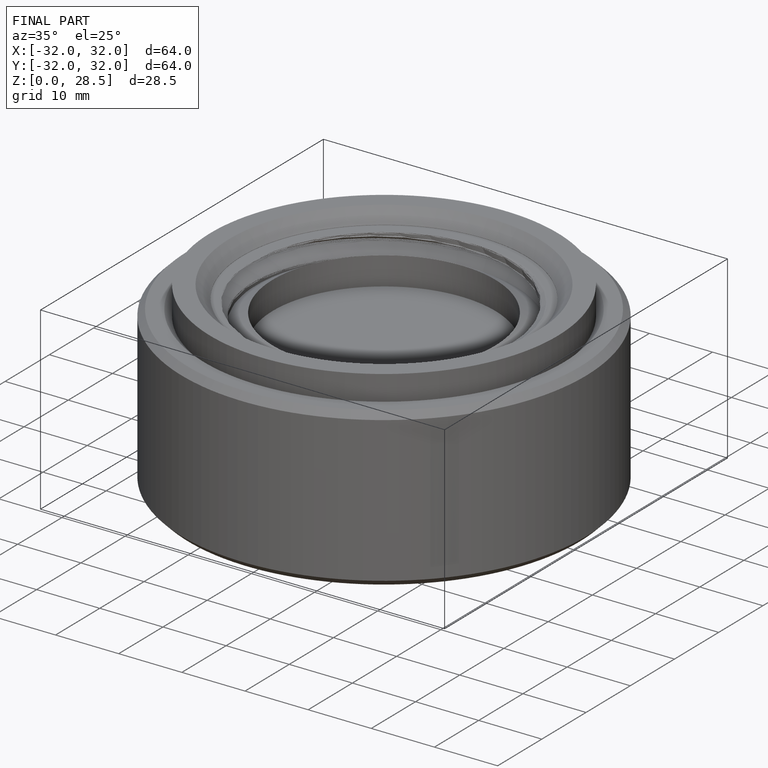
[diagram: finished part — iso view with bounding-box wireframe]
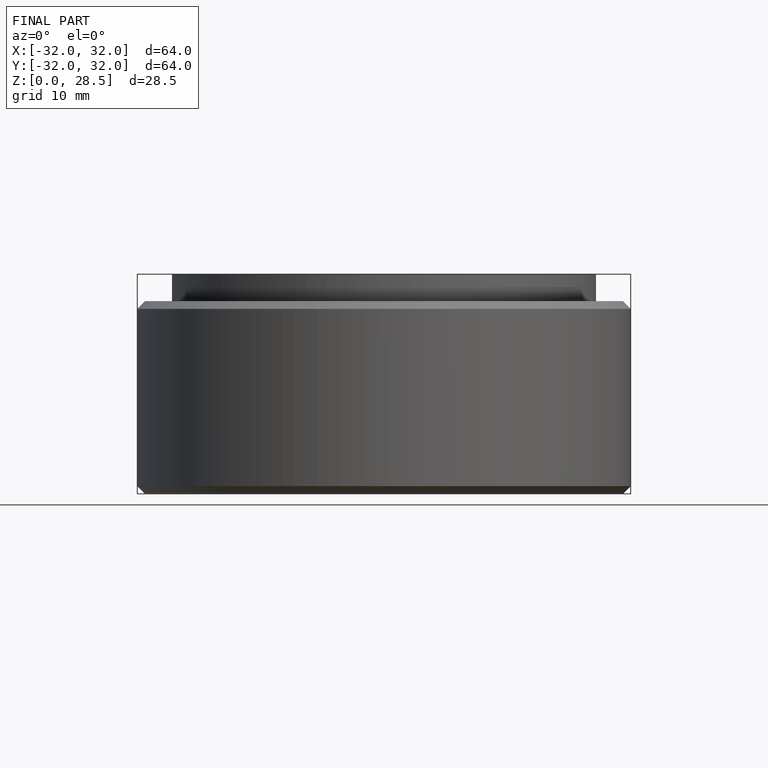
[diagram: finished part — front view with bounding-box wireframe]
